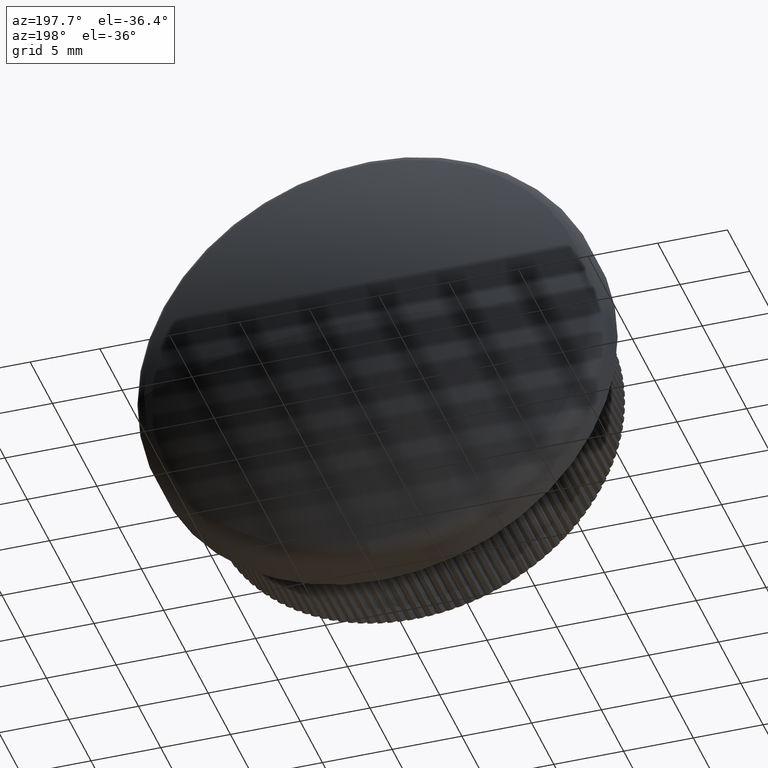
[diagram: clean part render]
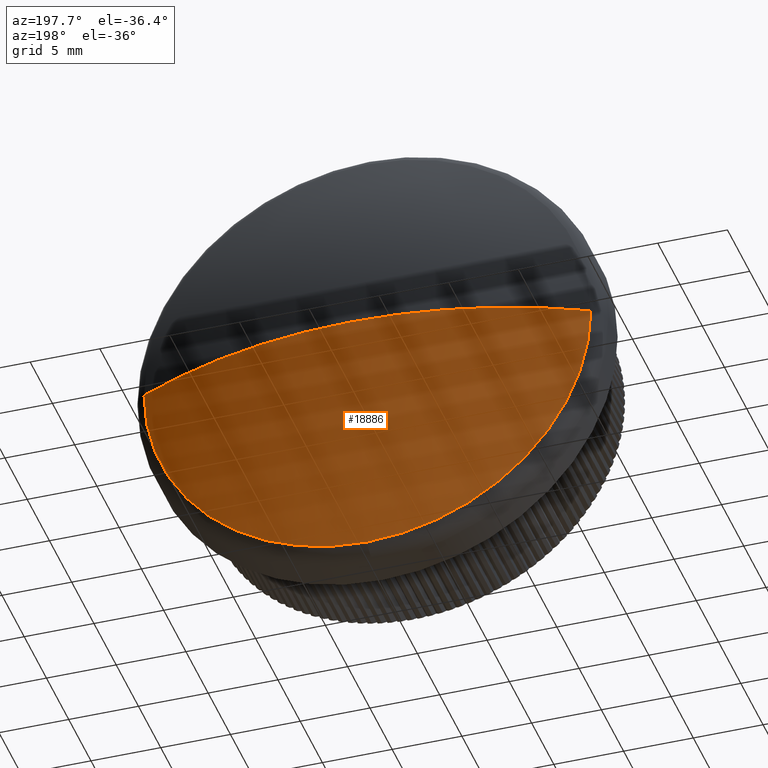
[diagram: same view with one face highlighted and labeled with its STEP entity id]
A machine part, auxiliary view. The second image highlights one B-rep face of the part: STEP entity #18886.
In plain terms, the highlighted spherical surface has radius 35.9003 mm.
Its self-contained STEP definition (entity closure, byte-faithful):
#46 = CIRCLE ( 'NONE', #480, 35.90029761904770600 ) ;
#277 = CARTESIAN_POINT ( 'NONE',  ( 0.0000000000000000000, 11.22776762478764600, 0.0000000000000000000 ) ) ;
#480 = AXIS2_PLACEMENT_3D ( 'NONE', #4869, #20974, #2906 ) ;
#1464 = VERTEX_POINT ( 'NONE', #15207 ) ;
#1488 = AXIS2_PLACEMENT_3D ( 'NONE', #277, #18556, #14588 ) ;
#2906 = DIRECTION ( 'NONE',  ( -1.000000000000000000, 0.0000000000000000000, 0.0000000000000000000 ) ) ;
#3203 = AXIS2_PLACEMENT_3D ( 'NONE', #11608, #5545, #15456 ) ;
#3640 = DIRECTION ( 'NONE',  ( 0.0000000000000000000, 0.0000000000000000000, 1.000000000000000000 ) ) ;
#4000 = EDGE_CURVE ( 'NONE', #25793, #1464, #16092, .T. ) ;
#4722 = DIRECTION ( 'NONE',  ( 1.000000000000000000, 0.0000000000000000000, -1.224646799147353200E-016 ) ) ;
#4869 = CARTESIAN_POINT ( 'NONE',  ( 0.0000000000000000000, -20.90029761904771300, 0.0000000000000000000 ) ) ;
#4916 = SPHERICAL_SURFACE ( 'NONE', #7680, 35.90029761904770600 ) ;
#5545 = DIRECTION ( 'NONE',  ( 0.0000000000000000000, 1.000000000000000000, 0.0000000000000000000 ) ) ;
#5618 = CIRCLE ( 'NONE', #26361, 35.90029761904770600 ) ;
#7680 = AXIS2_PLACEMENT_3D ( 'NONE', #13838, #3640, #20026 ) ;
#7986 = CARTESIAN_POINT ( 'NONE',  ( 16.01932560453345300, 11.22776762478764600, 0.0000000000000000000 ) ) ;
#8672 = ORIENTED_EDGE ( 'NONE', *, *, #20702, .T. ) ;
#10070 = CIRCLE ( 'NONE', #1488, 16.01932560453346000 ) ;
#11608 = CARTESIAN_POINT ( 'NONE',  ( 0.0000000000000000000, 11.22776762478764600, 0.0000000000000000000 ) ) ;
#11875 = ORIENTED_EDGE ( 'NONE', *, *, #22009, .F. ) ;
#12492 = EDGE_LOOP ( 'NONE', ( #11875, #8672, #13744, #14293 ) ) ;
#12947 = CARTESIAN_POINT ( 'NONE',  ( 0.0000000000000000000, -20.90029761904771300, 0.0000000000000000000 ) ) ;
#13453 = CARTESIAN_POINT ( 'NONE',  ( 2.198259228380206000E-015, 14.99999999999999300, 0.0000000000000000000 ) ) ;
#13667 = VERTEX_POINT ( 'NONE', #13453 ) ;
#13744 = ORIENTED_EDGE ( 'NONE', *, *, #4000, .T. ) ;
#13838 = CARTESIAN_POINT ( 'NONE',  ( 0.0000000000000000000, -20.90029761904771300, 0.0000000000000000000 ) ) ;
#14293 = ORIENTED_EDGE ( 'NONE', *, *, #17334, .T. ) ;
#14588 = DIRECTION ( 'NONE',  ( 0.0000000000000000000, 0.0000000000000000000, -1.000000000000000000 ) ) ;
#15207 = CARTESIAN_POINT ( 'NONE',  ( 0.0000000000000000000, 11.22776762478764600, -16.01932560453346000 ) ) ;
#15456 = DIRECTION ( 'NONE',  ( 0.0000000000000000000, 0.0000000000000000000, -1.000000000000000000 ) ) ;
#16092 = CIRCLE ( 'NONE', #3203, 16.01932560453346000 ) ;
#17309 = DIRECTION ( 'NONE',  ( 1.224646799147353200E-016, -0.0000000000000000000, 1.000000000000000000 ) ) ;
#17334 = EDGE_CURVE ( 'NONE', #1464, #26454, #10070, .T. ) ;
#18556 = DIRECTION ( 'NONE',  ( 0.0000000000000000000, 1.000000000000000000, 0.0000000000000000000 ) ) ;
#18886 = ADVANCED_FACE ( 'NONE', ( #23828 ), #4916, .T. ) ;
#20026 = DIRECTION ( 'NONE',  ( 1.000000000000000000, 0.0000000000000000000, 0.0000000000000000000 ) ) ;
#20702 = EDGE_CURVE ( 'NONE', #13667, #25793, #46, .T. ) ;
#20974 = DIRECTION ( 'NONE',  ( 0.0000000000000000000, 0.0000000000000000000, -1.000000000000000000 ) ) ;
#22009 = EDGE_CURVE ( 'NONE', #13667, #26454, #5618, .T. ) ;
#23163 = CARTESIAN_POINT ( 'NONE',  ( -16.01932560453345300, 11.22776762478764600, 1.961801582609113400E-015 ) ) ;
#23828 = FACE_OUTER_BOUND ( 'NONE', #12492, .T. ) ;
#25793 = VERTEX_POINT ( 'NONE', #7986 ) ;
#26361 = AXIS2_PLACEMENT_3D ( 'NONE', #12947, #17309, #4722 ) ;
#26454 = VERTEX_POINT ( 'NONE', #23163 ) ;